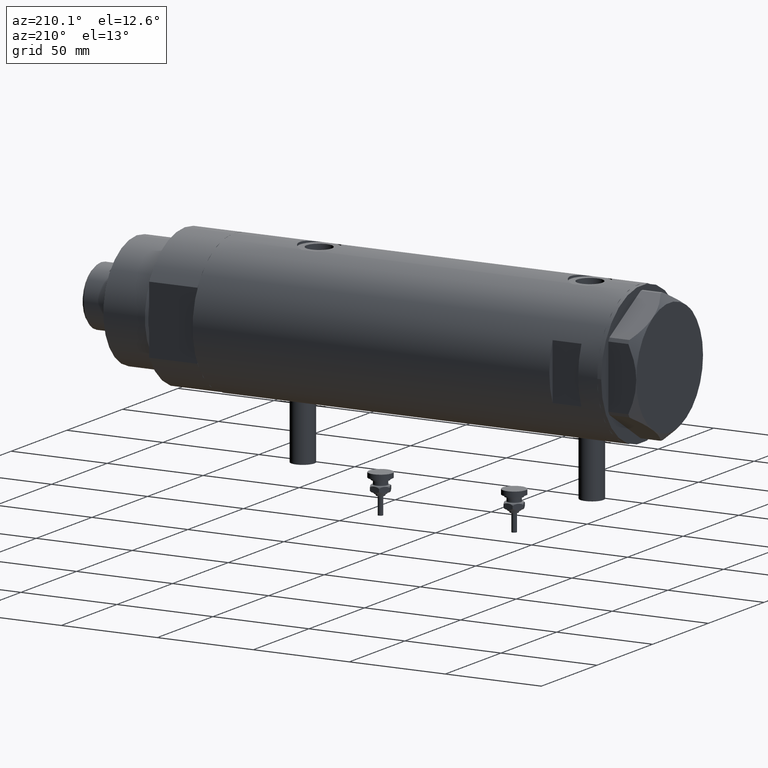
[diagram: clean part render]
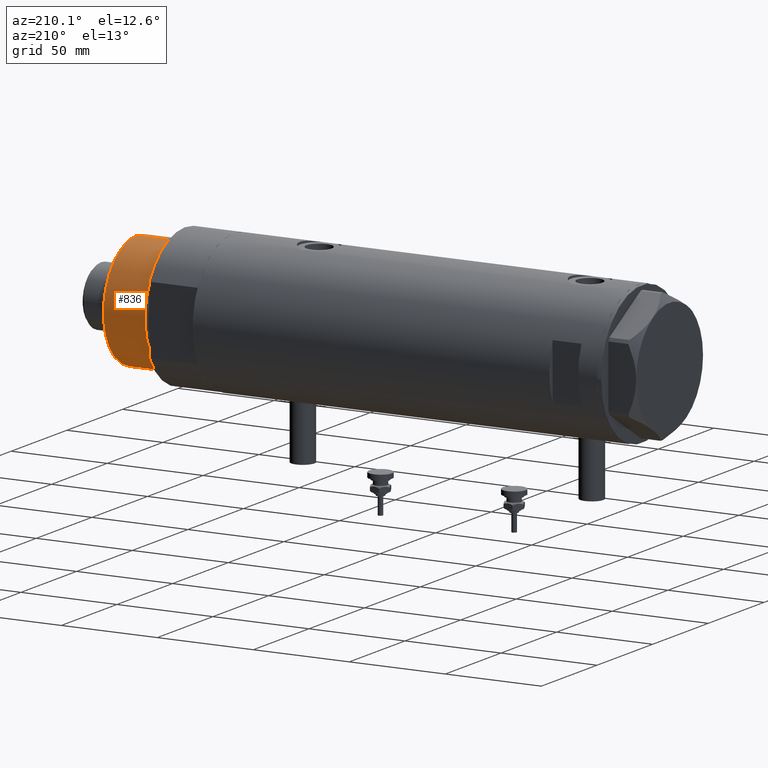
[diagram: same view with one face highlighted and labeled with its STEP entity id]
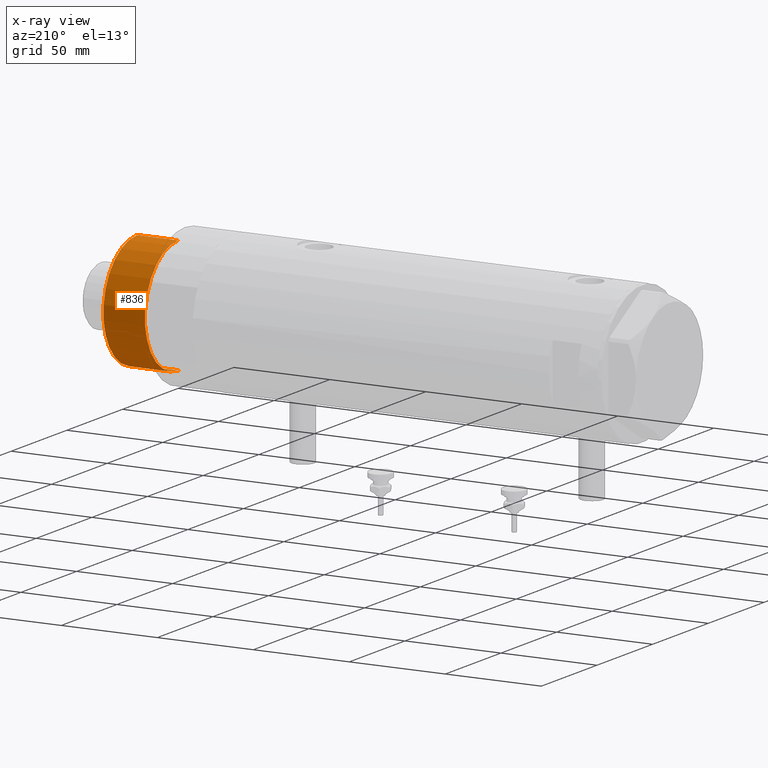
[diagram: x-ray of the same camera — body ghosted, the highlighted face saturated]
A machine part, auxiliary view. The second image highlights one B-rep face of the part: STEP entity #836.
The next image is the same camera in x-ray: the body ghosted, the highlighted face saturated — about 0% of this face is hidden behind the body in this view.
In plain terms, the highlighted cylindrical surface (partial cylindrical patch) has radius 30 mm, axis along (-1, -0, 0).
Its self-contained STEP definition (entity closure, byte-faithful):
#17 = DIRECTION ( 'NONE',  ( -0.000000000000000000, -0.000000000000000000, -1.000000000000000000 ) ) ;
#63 = DIRECTION ( 'NONE',  ( -1.000000000000000000, 0.000000000000000000, 0.000000000000000000 ) ) ;
#524 = AXIS2_PLACEMENT_3D ( 'NONE', #5756, #3028, #5096 ) ;
#570 = FACE_OUTER_BOUND ( 'NONE', #2342, .T. ) ;
#836 = ADVANCED_FACE ( 'NONE', ( #570 ), #4220, .T. ) ;
#882 = EDGE_CURVE ( 'NONE', #3933, #1587, #1725, .T. ) ;
#923 = ORIENTED_EDGE ( 'NONE', *, *, #2447, .T. ) ;
#1256 = CARTESIAN_POINT ( 'NONE',  ( -30.00000000000000000, 0.000000000000000000, 50.19999999999999574 ) ) ;
#1366 = VECTOR ( 'NONE', #17, 1000.000000000000000 ) ;
#1587 = VERTEX_POINT ( 'NONE', #5144 ) ;
#1611 = VECTOR ( 'NONE', #2103, 1000.000000000000000 ) ;
#1725 = LINE ( 'NONE', #5362, #1611 ) ;
#2103 = DIRECTION ( 'NONE',  ( -0.000000000000000000, -0.000000000000000000, -1.000000000000000000 ) ) ;
#2295 = CARTESIAN_POINT ( 'NONE',  ( 30.00000000000000000, 3.673940397442058389E-15, 50.19999999999999574 ) ) ;
#2342 = EDGE_LOOP ( 'NONE', ( #4544, #3485, #923, #4059 ) ) ;
#2447 = EDGE_CURVE ( 'NONE', #3782, #1587, #2699, .T. ) ;
#2699 = CIRCLE ( 'NONE', #3306, 30.00000000000000000 ) ;
#2797 = CARTESIAN_POINT ( 'NONE',  ( 30.00000000000000000, 3.673940397442058389E-15, 50.19999999999999574 ) ) ;
#2916 = EDGE_CURVE ( 'NONE', #4199, #3782, #4840, .T. ) ;
#3028 = DIRECTION ( 'NONE',  ( 0.000000000000000000, 0.000000000000000000, 1.000000000000000000 ) ) ;
#3306 = AXIS2_PLACEMENT_3D ( 'NONE', #4874, #4358, #5323 ) ;
#3353 = AXIS2_PLACEMENT_3D ( 'NONE', #5596, #4612, #63 ) ;
#3485 = ORIENTED_EDGE ( 'NONE', *, *, #2916, .T. ) ;
#3782 = VERTEX_POINT ( 'NONE', #4448 ) ;
#3830 = EDGE_CURVE ( 'NONE', #4199, #3933, #5418, .T. ) ;
#3933 = VERTEX_POINT ( 'NONE', #1256 ) ;
#4059 = ORIENTED_EDGE ( 'NONE', *, *, #882, .F. ) ;
#4199 = VERTEX_POINT ( 'NONE', #2295 ) ;
#4220 = CYLINDRICAL_SURFACE ( 'NONE', #3353, 30.00000000000000000 ) ;
#4358 = DIRECTION ( 'NONE',  ( -0.000000000000000000, -0.000000000000000000, 1.000000000000000000 ) ) ;
#4448 = CARTESIAN_POINT ( 'NONE',  ( 30.00000000000000000, 3.673940397442058389E-15, 28.57384048104054486 ) ) ;
#4544 = ORIENTED_EDGE ( 'NONE', *, *, #3830, .F. ) ;
#4612 = DIRECTION ( 'NONE',  ( -0.000000000000000000, -0.000000000000000000, -1.000000000000000000 ) ) ;
#4840 = LINE ( 'NONE', #2797, #1366 ) ;
#4874 = CARTESIAN_POINT ( 'NONE',  ( 0.000000000000000000, 0.000000000000000000, 28.57384048104054486 ) ) ;
#5096 = DIRECTION ( 'NONE',  ( 1.000000000000000000, 0.000000000000000000, 0.000000000000000000 ) ) ;
#5144 = CARTESIAN_POINT ( 'NONE',  ( -30.00000000000000000, 0.000000000000000000, 28.57384048104054486 ) ) ;
#5323 = DIRECTION ( 'NONE',  ( 1.000000000000000000, 0.000000000000000000, 0.000000000000000000 ) ) ;
#5362 = CARTESIAN_POINT ( 'NONE',  ( -30.00000000000000000, 0.000000000000000000, 50.19999999999999574 ) ) ;
#5418 = CIRCLE ( 'NONE', #524, 30.00000000000000000 ) ;
#5596 = CARTESIAN_POINT ( 'NONE',  ( 0.000000000000000000, 0.000000000000000000, 50.19999999999999574 ) ) ;
#5756 = CARTESIAN_POINT ( 'NONE',  ( 0.000000000000000000, 0.000000000000000000, 50.19999999999999574 ) ) ;